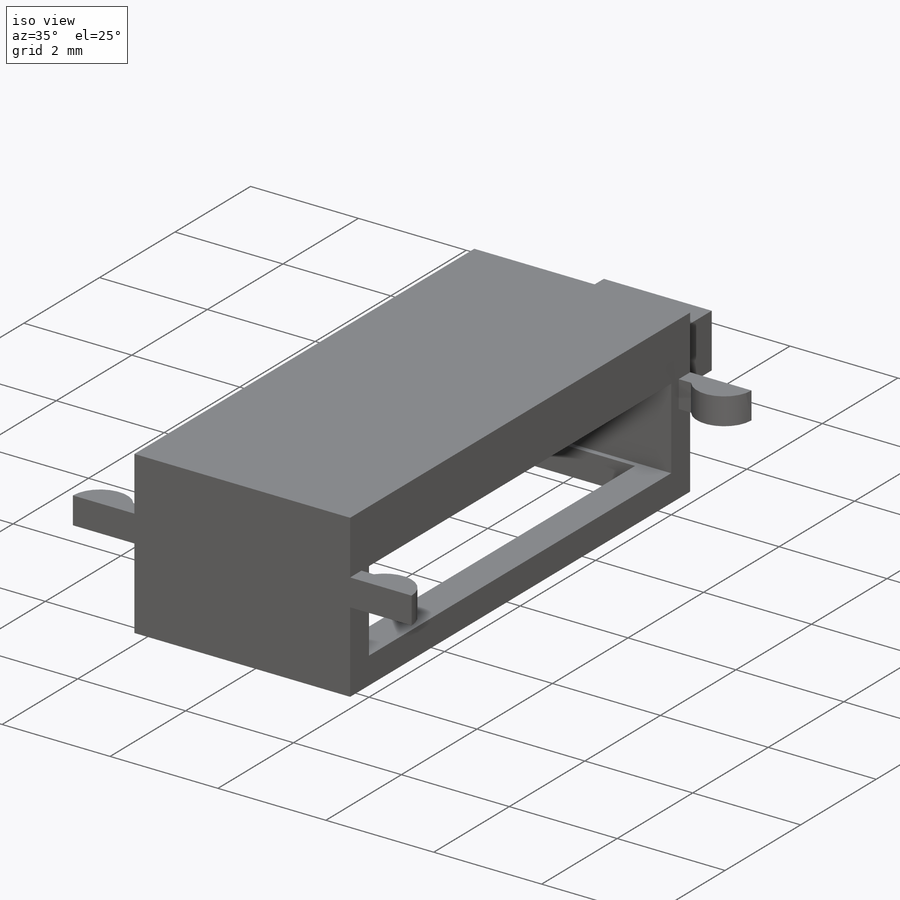
[diagram: iso view]
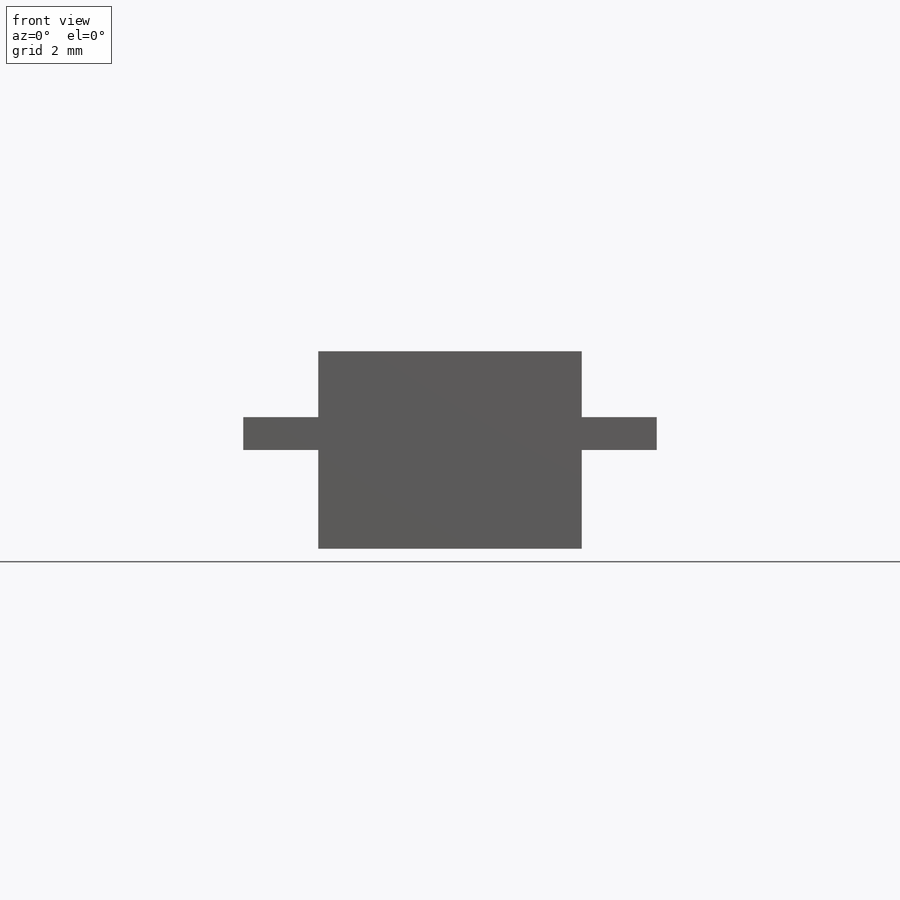
[diagram: front view]
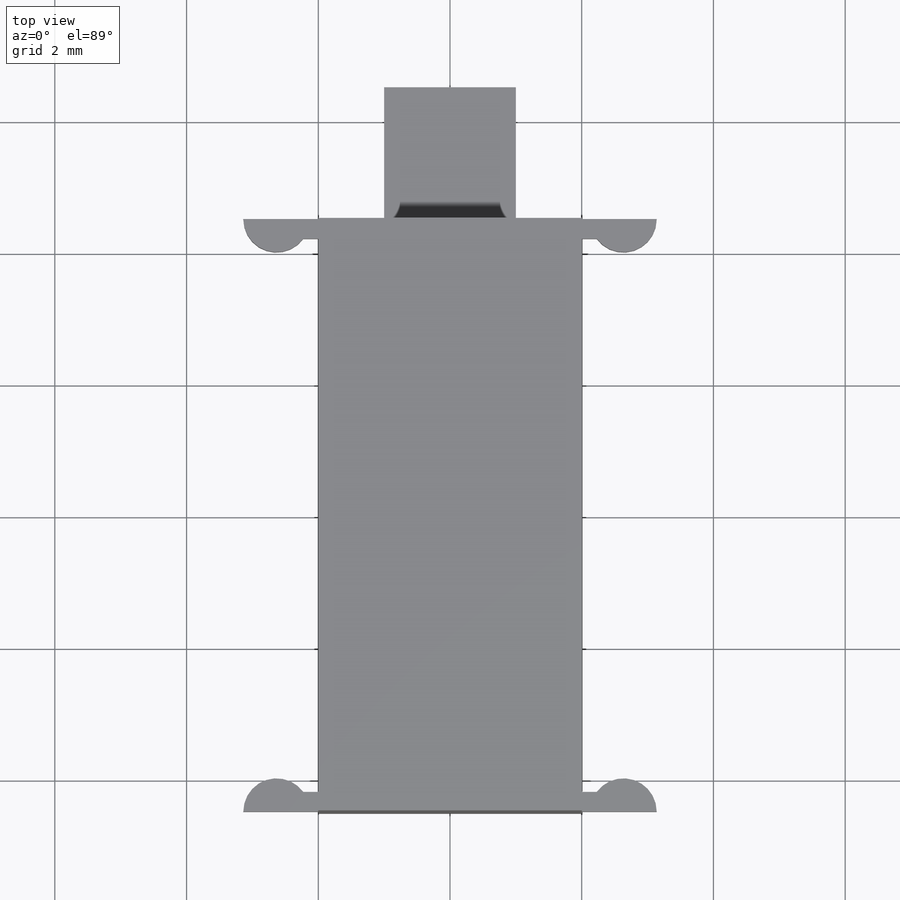
[diagram: top view]
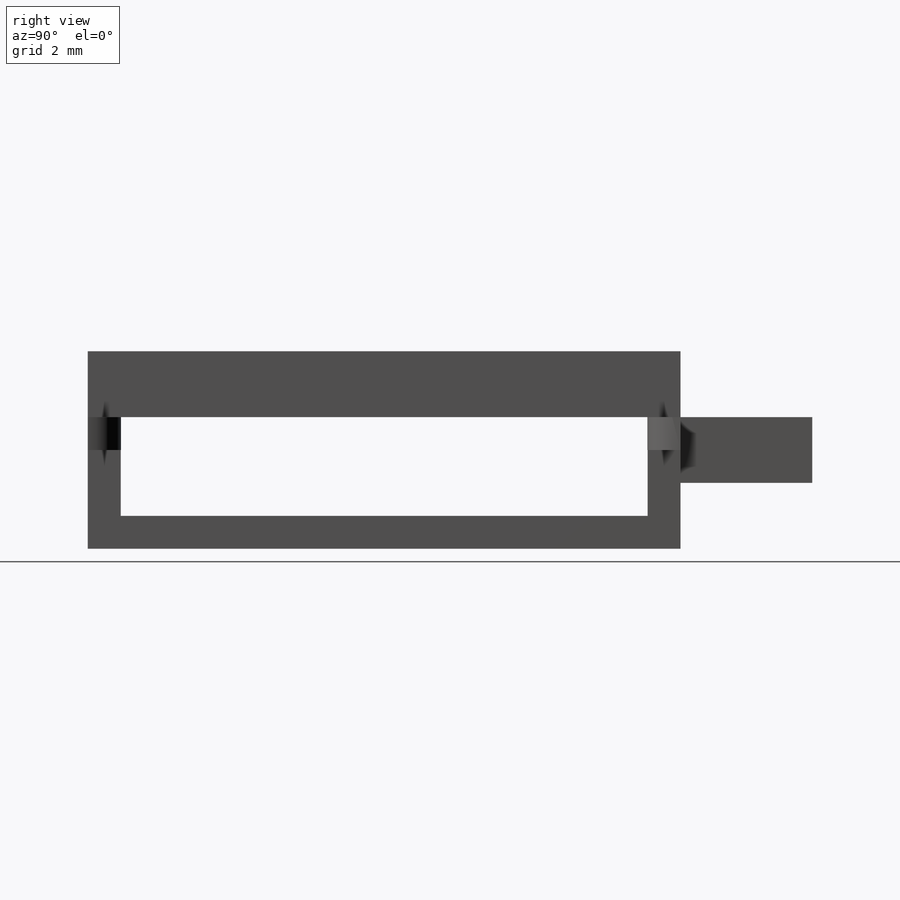
[diagram: right view]
SOLIDWORKS PART (.sldprt)
format: sldprt  version: not decoded by parser v0  size: 252,928 bytes
history: native  units: mm
features: sketch x5, extrude x5, plane x3, material x1, mirror x1 (+8 scaffold rows collapsed)
feature tree (23):
  scaffold x8  (default folders/planes/origin — collapsed)
  material  "材质 <未指定>"
  plane  "前视基准面"
  plane  "上视基准面"
  plane  "右视基准面"
  sketch  "草图1"  dims[c1.D1=~48.345963mm c1.D2=~23.579259mm c2.D1=8.0mm c2.D2=4.0mm c3.D1=8.3022mm c3.D2=~3.986504mm c4.D1=8.0mm c4.D2=4.0mm]
  extrude  "凸台-拉伸1"  Depth=1mm
  sketch  "草图2"  dims[c1.D1=~2.718679mm c1.D2=~3.938693mm c2.D1=2.5mm]
  extrude  "凸台-拉伸2"  Depth=0.5mm
  mirror  "镜向1"
  sketch  "草图3"  dims[c1.D1=9.0mm c1.D2=4.0mm c2.D1=0.6mm]
  extrude  "凸台-拉伸3"  Depth=0.5mm
  sketch  "草图4"  dims[D1=0.3mm D2=4.4209mm]
  extrude  "凸台-拉伸4"  Depth=0.5mm
  sketch  "草图5"  dims[c1.D1=~1.375289mm c1.D2=~2.065496mm c2.D1=2.0mm c2.D2=1.0mm]
  extrude  "凸台-拉伸5"  Depth=2mm
decode coverage: 10 of 11 modeling features carry decoded parameters
note: ~ marks probable driven/reference dimensions
note: suppression state not decoded; provenance and decode notes live in map.json
